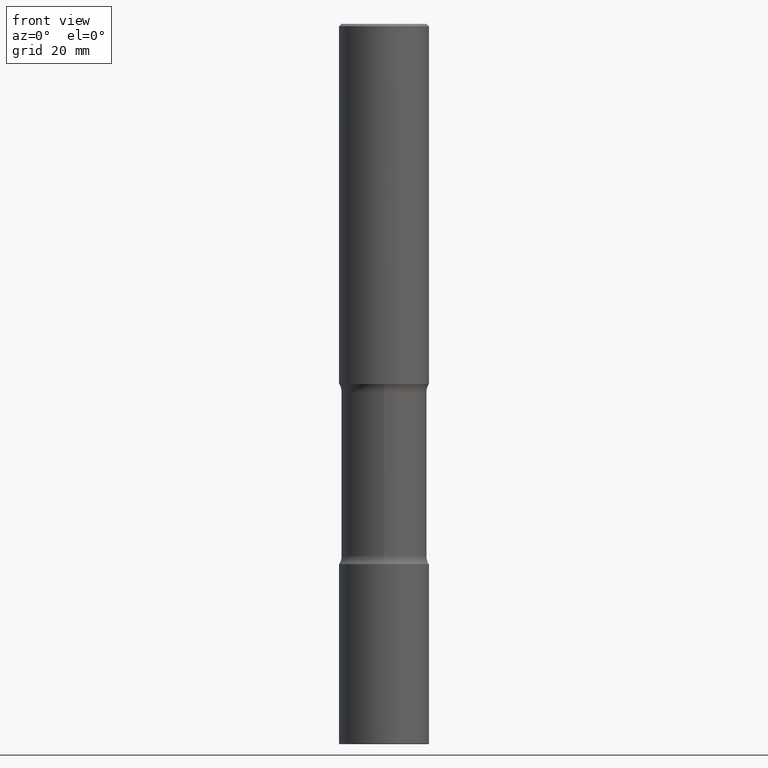
[diagram: clean part render]
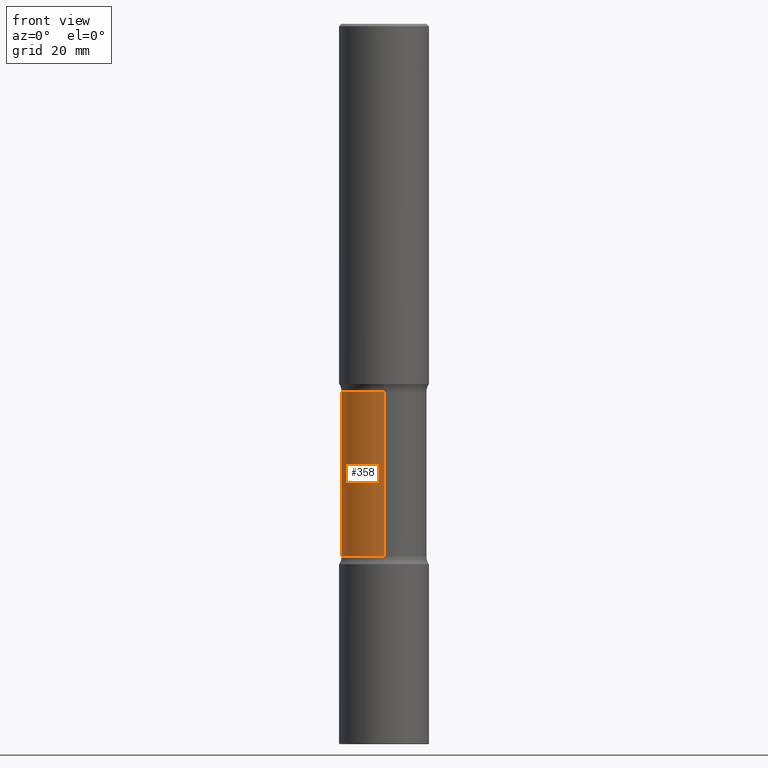
[diagram: same view with one face highlighted and labeled with its STEP entity id]
A machine part, front view. The second image highlights one B-rep face of the part: STEP entity #358.
In plain terms, the highlighted cylindrical surface (partial cylindrical patch) has radius 9.0488 mm, axis along (0, -0, -1).
Its self-contained STEP definition (entity closure, byte-faithful):
#54 = CARTESIAN_POINT ( 'NONE',  ( 7.407401089244291879E-29, -1.083328454578828421E-14, -3.065847835955329614 ) ) ;
#70 = VERTEX_POINT ( 'NONE', #217 ) ;
#71 = VERTEX_POINT ( 'NONE', #376 ) ;
#101 = CYLINDRICAL_SURFACE ( 'NONE', #379, 0.3562500000000000111 ) ;
#107 = ORIENTED_EDGE ( 'NONE', *, *, #291, .T. ) ;
#108 = DIRECTION ( 'NONE',  ( 6.982962677686265133E-15, 1.000000000000000000, -3.067338098149347905E-15 ) ) ;
#114 = DIRECTION ( 'NONE',  ( 2.508247471065963170E-29, -3.401578717594097873E-15, -1.000000000000000000 ) ) ;
#148 = VERTEX_POINT ( 'NONE', #347 ) ;
#152 = ORIENTED_EDGE ( 'NONE', *, *, #324, .T. ) ;
#154 = DIRECTION ( 'NONE',  ( 6.982962677686265133E-15, 1.000000000000000000, -3.067338098149347905E-15 ) ) ;
#195 = LINE ( 'NONE', #282, #314 ) ;
#200 = DIRECTION ( 'NONE',  ( 2.508247471065963170E-29, -3.401578717594097873E-15, -1.000000000000000000 ) ) ;
#216 = LINE ( 'NONE', #252, #281 ) ;
#217 = CARTESIAN_POINT ( 'NONE',  ( 2.487680453925806274E-15, 0.3562499999999891309, -3.065847835955330503 ) ) ;
#252 = CARTESIAN_POINT ( 'NONE',  ( -2.444052411705960129E-15, -0.3562500000000208278, -5.999999999999998224 ) ) ;
#263 = AXIS2_PLACEMENT_3D ( 'NONE', #54, #200, #108 ) ;
#271 = EDGE_LOOP ( 'NONE', ( #365, #107, #152, #419 ) ) ;
#281 = VECTOR ( 'NONE', #114, 39.37007874015748143 ) ;
#282 = CARTESIAN_POINT ( 'NONE',  ( 2.487680453925879638E-15, 0.3562499999999791389, -6.000000000000000888 ) ) ;
#291 = EDGE_CURVE ( 'NONE', #71, #70, #323, .T. ) ;
#314 = VECTOR ( 'NONE', #412, 39.37007874015748143 ) ;
#323 = CIRCLE ( 'NONE', #263, 0.3562500000000000111 ) ;
#324 = EDGE_CURVE ( 'NONE', #70, #459, #195, .T. ) ;
#347 = CARTESIAN_POINT ( 'NONE',  ( -2.508369580435107128E-15, -0.3562500000000154987, -4.434152164044668609 ) ) ;
#358 = ADVANCED_FACE ( 'NONE', ( #537 ), #101, .T. ) ;
#365 = ORIENTED_EDGE ( 'NONE', *, *, #508, .F. ) ;
#371 = DIRECTION ( 'NONE',  ( 2.508247471065963170E-29, -3.401578717594097873E-15, -1.000000000000000000 ) ) ;
#376 = CARTESIAN_POINT ( 'NONE',  ( -2.508369580435144205E-15, -0.3562500000000108358, -3.065847835955328282 ) ) ;
#379 = AXIS2_PLACEMENT_3D ( 'NONE', #544, #371, #154 ) ;
#406 = AXIS2_PLACEMENT_3D ( 'NONE', #516, #558, #503 ) ;
#412 = DIRECTION ( 'NONE',  ( 2.508247471065963170E-29, -3.401578717594097873E-15, -1.000000000000000000 ) ) ;
#419 = ORIENTED_EDGE ( 'NONE', *, *, #453, .F. ) ;
#453 = EDGE_CURVE ( 'NONE', #148, #459, #468, .T. ) ;
#459 = VERTEX_POINT ( 'NONE', #513 ) ;
#468 = CIRCLE ( 'NONE', #406, 0.3562500000000000111 ) ;
#503 = DIRECTION ( 'NONE',  ( 6.982962677686265133E-15, 1.000000000000000000, -3.067338098149347905E-15 ) ) ;
#508 = EDGE_CURVE ( 'NONE', #71, #148, #216, .T. ) ;
#513 = CARTESIAN_POINT ( 'NONE',  ( 2.487680453925840195E-15, 0.3562499999999844680, -4.434152164044670386 ) ) ;
#516 = CARTESIAN_POINT ( 'NONE',  ( 1.083944695982298980E-28, -1.548767942740887449E-14, -4.434152164044669497 ) ) ;
#537 = FACE_OUTER_BOUND ( 'NONE', #271, .T. ) ;
#544 = CARTESIAN_POINT ( 'NONE',  ( 1.476698083443205790E-28, -2.081403410118529621E-14, -5.999999999999999112 ) ) ;
#558 = DIRECTION ( 'NONE',  ( 2.508247471065963170E-29, -3.401578717594097873E-15, -1.000000000000000000 ) ) ;